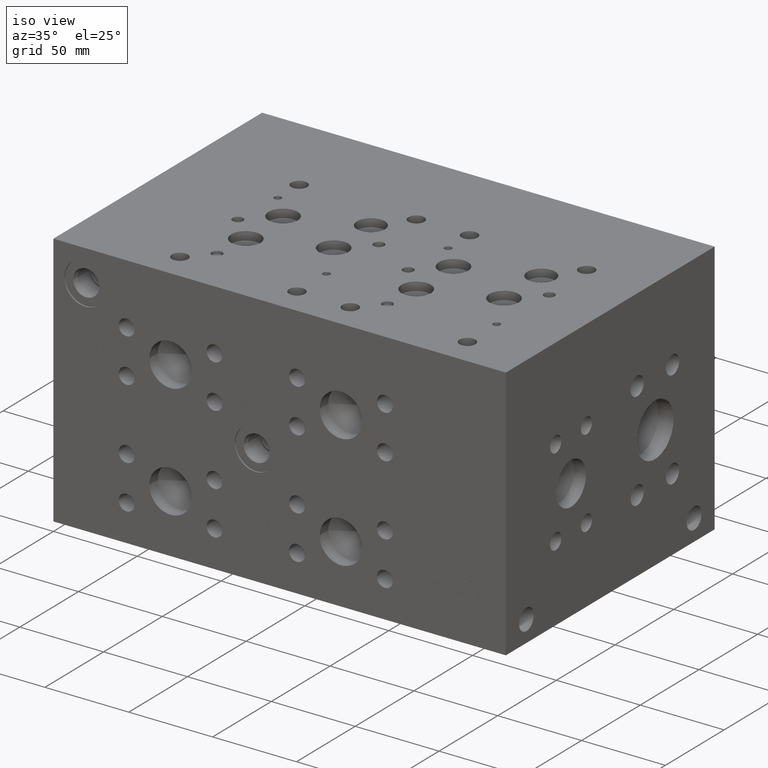
[diagram: clean part render]
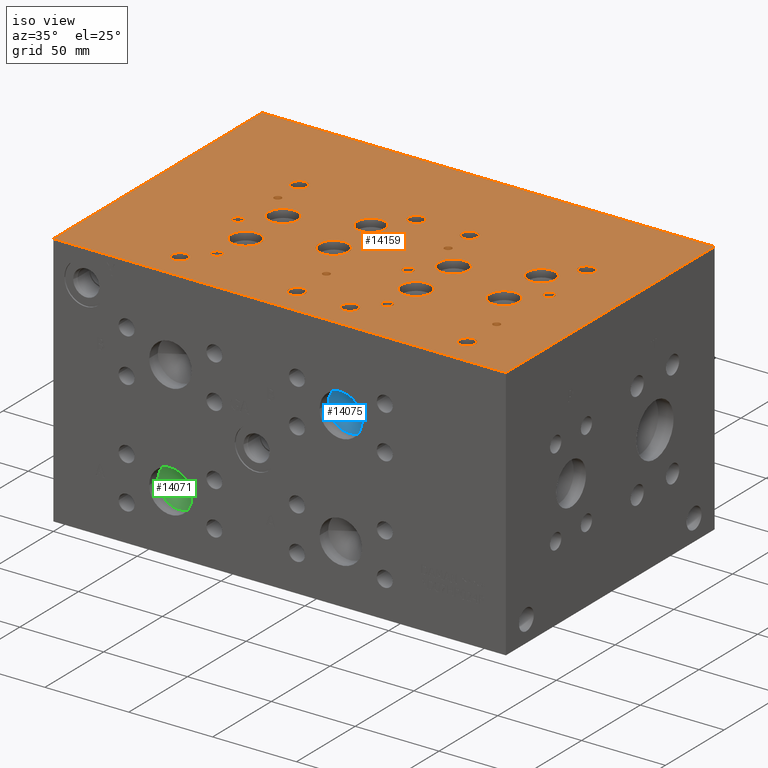
[diagram: same view with three faces highlighted in distinct colors, each labeled with its STEP entity id]
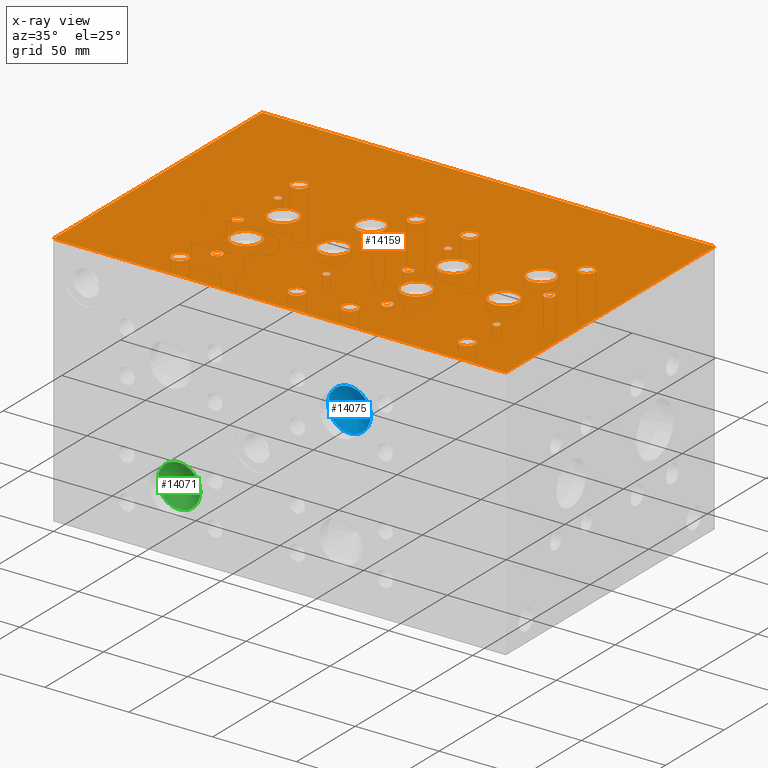
[diagram: x-ray of the same camera — body ghosted, the three highlighted faces saturated]
A machine part, iso view with three faces highlighted in distinct colors.
The next image is the same camera in x-ray (body ghosted, the three faces saturated) — at least one of them is partly hidden behind the body in this view.
Their STEP definitions:

[orange] entity #14159 — the highlighted planar face has unit normal (0, 0, 1).
#544=CIRCLE('',#15035,2.1844);
#545=CIRCLE('',#15036,2.1844);
#548=CIRCLE('',#15041,2.1844);
#549=CIRCLE('',#15042,2.1844);
#552=CIRCLE('',#15047,3.175);
#553=CIRCLE('',#15048,3.175);
#556=CIRCLE('',#15053,3.175);
#557=CIRCLE('',#15054,3.175);
#560=CIRCLE('',#15059,8.3312);
#561=CIRCLE('',#15060,8.3312);
#564=CIRCLE('',#15065,8.3312);
#565=CIRCLE('',#15066,8.3312);
#568=CIRCLE('',#15071,8.7376);
#569=CIRCLE('',#15072,8.7376);
#572=CIRCLE('',#15077,8.7376);
#573=CIRCLE('',#15078,8.7376);
#576=CIRCLE('',#15083,8.7376);
#577=CIRCLE('',#15084,8.7376);
#580=CIRCLE('',#15089,8.7376);
#581=CIRCLE('',#15090,8.7376);
#584=CIRCLE('',#15095,8.7376);
#585=CIRCLE('',#15096,8.7376);
#588=CIRCLE('',#15101,8.7376);
#589=CIRCLE('',#15102,8.7376);
#592=CIRCLE('',#15107,2.1844);
#593=CIRCLE('',#15108,2.1844);
#596=CIRCLE('',#15113,2.1844);
#597=CIRCLE('',#15114,2.1844);
#603=CIRCLE('',#15123,3.175);
#604=CIRCLE('',#15124,3.175);
#610=CIRCLE('',#15134,3.175);
#611=CIRCLE('',#15135,3.175);
#617=CIRCLE('',#15145,3.175);
#618=CIRCLE('',#15146,3.175);
#624=CIRCLE('',#15156,3.175);
#625=CIRCLE('',#15157,3.175);
#631=CIRCLE('',#15167,4.7625);
#632=CIRCLE('',#15168,4.7625);
#638=CIRCLE('',#15178,4.7625);
#639=CIRCLE('',#15179,4.7625);
#645=CIRCLE('',#15189,4.7625);
#646=CIRCLE('',#15190,4.7625);
#652=CIRCLE('',#15200,4.7625);
#653=CIRCLE('',#15201,4.7625);
#659=CIRCLE('',#15211,4.7625);
#660=CIRCLE('',#15212,4.7625);
#666=CIRCLE('',#15222,4.7625);
#667=CIRCLE('',#15223,4.7625);
#673=CIRCLE('',#15233,4.7625);
#674=CIRCLE('',#15234,4.7625);
#680=CIRCLE('',#15244,4.7625);
#681=CIRCLE('',#15245,4.7625);
#827=FACE_BOUND('',#2873,.T.);
#828=FACE_BOUND('',#2874,.T.);
#829=FACE_BOUND('',#2875,.T.);
#830=FACE_BOUND('',#2876,.T.);
#831=FACE_BOUND('',#2877,.T.);
#832=FACE_BOUND('',#2878,.T.);
#833=FACE_BOUND('',#2879,.T.);
#834=FACE_BOUND('',#2880,.T.);
#835=FACE_BOUND('',#2881,.T.);
#836=FACE_BOUND('',#2882,.T.);
#837=FACE_BOUND('',#2883,.T.);
#838=FACE_BOUND('',#2884,.T.);
#839=FACE_BOUND('',#2885,.T.);
#840=FACE_BOUND('',#2886,.T.);
#841=FACE_BOUND('',#2887,.T.);
#842=FACE_BOUND('',#2888,.T.);
#843=FACE_BOUND('',#2889,.T.);
#844=FACE_BOUND('',#2890,.T.);
#845=FACE_BOUND('',#2891,.T.);
#846=FACE_BOUND('',#2892,.T.);
#847=FACE_BOUND('',#2893,.T.);
#848=FACE_BOUND('',#2894,.T.);
#849=FACE_BOUND('',#2895,.T.);
#850=FACE_BOUND('',#2896,.T.);
#851=FACE_BOUND('',#2897,.T.);
#852=FACE_BOUND('',#2898,.T.);
#1261=PLANE('',#15251);
#1994=FACE_OUTER_BOUND('',#2872,.T.);
#2872=EDGE_LOOP('',(#12798,#12799,#12800,#12801));
#2873=EDGE_LOOP('',(#12802,#12803));
#2874=EDGE_LOOP('',(#12804,#12805));
#2875=EDGE_LOOP('',(#12806,#12807));
#2876=EDGE_LOOP('',(#12808,#12809));
#2877=EDGE_LOOP('',(#12810,#12811));
#2878=EDGE_LOOP('',(#12812,#12813));
#2879=EDGE_LOOP('',(#12814,#12815));
#2880=EDGE_LOOP('',(#12816,#12817));
#2881=EDGE_LOOP('',(#12818,#12819));
#2882=EDGE_LOOP('',(#12820,#12821));
#2883=EDGE_LOOP('',(#12822,#12823));
#2884=EDGE_LOOP('',(#12824,#12825));
#2885=EDGE_LOOP('',(#12826,#12827));
#2886=EDGE_LOOP('',(#12828,#12829));
#2887=EDGE_LOOP('',(#12830,#12831));
#2888=EDGE_LOOP('',(#12832,#12833));
#2889=EDGE_LOOP('',(#12834,#12835));
#2890=EDGE_LOOP('',(#12836,#12837));
#2891=EDGE_LOOP('',(#12838,#12839));
#2892=EDGE_LOOP('',(#12840,#12841));
#2893=EDGE_LOOP('',(#12842,#12843));
#2894=EDGE_LOOP('',(#12844,#12845));
#2895=EDGE_LOOP('',(#12846,#12847));
#2896=EDGE_LOOP('',(#12848,#12849));
#2897=EDGE_LOOP('',(#12850,#12851));
#2898=EDGE_LOOP('',(#12852,#12853));
#2934=LINE('',#18870,#4184);
#2994=LINE('',#19177,#4244);
#3315=LINE('',#20743,#4565);
#4149=LINE('',#24243,#5399);
#4184=VECTOR('',#15309,10.);
#4244=VECTOR('',#15455,10.);
#4565=VECTOR('',#16026,10.);
#5399=VECTOR('',#18652,10.);
#5668=VERTEX_POINT('',#18867);
#5669=VERTEX_POINT('',#18869);
#5744=VERTEX_POINT('',#19174);
#5745=VERTEX_POINT('',#19176);
#6857=VERTEX_POINT('',#23802);
#6858=VERTEX_POINT('',#23803);
#6862=VERTEX_POINT('',#23815);
#6863=VERTEX_POINT('',#23816);
#6867=VERTEX_POINT('',#23828);
#6868=VERTEX_POINT('',#23829);
#6872=VERTEX_POINT('',#23841);
#6873=VERTEX_POINT('',#23842);
#6877=VERTEX_POINT('',#23854);
#6878=VERTEX_POINT('',#23855);
#6882=VERTEX_POINT('',#23867);
#6883=VERTEX_POINT('',#23868);
#6887=VERTEX_POINT('',#23880);
#6888=VERTEX_POINT('',#23881);
#6892=VERTEX_POINT('',#23893);
#6893=VERTEX_POINT('',#23894);
#6897=VERTEX_POINT('',#23906);
#6898=VERTEX_POINT('',#23907);
#6902=VERTEX_POINT('',#23919);
#6903=VERTEX_POINT('',#23920);
#6907=VERTEX_POINT('',#23932);
#6908=VERTEX_POINT('',#23933);
#6912=VERTEX_POINT('',#23945);
#6913=VERTEX_POINT('',#23946);
#6917=VERTEX_POINT('',#23958);
#6918=VERTEX_POINT('',#23959);
#6922=VERTEX_POINT('',#23971);
#6923=VERTEX_POINT('',#23972);
#6930=VERTEX_POINT('',#23991);
#6931=VERTEX_POINT('',#23992);
#6938=VERTEX_POINT('',#24013);
#6939=VERTEX_POINT('',#24014);
#6946=VERTEX_POINT('',#24035);
#6947=VERTEX_POINT('',#24036);
#6954=VERTEX_POINT('',#24057);
#6955=VERTEX_POINT('',#24058);
#6962=VERTEX_POINT('',#24079);
#6963=VERTEX_POINT('',#24080);
#6970=VERTEX_POINT('',#24101);
#6971=VERTEX_POINT('',#24102);
#6978=VERTEX_POINT('',#24123);
#6979=VERTEX_POINT('',#24124);
#6986=VERTEX_POINT('',#24145);
#6987=VERTEX_POINT('',#24146);
#6994=VERTEX_POINT('',#24167);
#6995=VERTEX_POINT('',#24168);
#7002=VERTEX_POINT('',#24189);
#7003=VERTEX_POINT('',#24190);
#7010=VERTEX_POINT('',#24211);
#7011=VERTEX_POINT('',#24212);
#7018=VERTEX_POINT('',#24233);
#7019=VERTEX_POINT('',#24234);
#7070=EDGE_CURVE('',#5669,#5668,#2934,.T.);
#7170=EDGE_CURVE('',#5745,#5744,#2994,.T.);
#7617=EDGE_CURVE('',#5744,#5669,#3315,.T.);
#8763=EDGE_CURVE('',#6857,#6858,#544,.T.);
#8764=EDGE_CURVE('',#6858,#6857,#545,.T.);
#8769=EDGE_CURVE('',#6862,#6863,#548,.T.);
#8770=EDGE_CURVE('',#6863,#6862,#549,.T.);
#8775=EDGE_CURVE('',#6867,#6868,#552,.T.);
#8776=EDGE_CURVE('',#6868,#6867,#553,.T.);
#8781=EDGE_CURVE('',#6872,#6873,#556,.T.);
#8782=EDGE_CURVE('',#6873,#6872,#557,.T.);
#8787=EDGE_CURVE('',#6877,#6878,#560,.T.);
#8788=EDGE_CURVE('',#6878,#6877,#561,.T.);
#8793=EDGE_CURVE('',#6882,#6883,#564,.T.);
#8794=EDGE_CURVE('',#6883,#6882,#565,.T.);
#8799=EDGE_CURVE('',#6887,#6888,#568,.T.);
#8800=EDGE_CURVE('',#6888,#6887,#569,.T.);
#8805=EDGE_CURVE('',#6892,#6893,#572,.T.);
#8806=EDGE_CURVE('',#6893,#6892,#573,.T.);
#8811=EDGE_CURVE('',#6897,#6898,#576,.T.);
#8812=EDGE_CURVE('',#6898,#6897,#577,.T.);
#8817=EDGE_CURVE('',#6902,#6903,#580,.T.);
#8818=EDGE_CURVE('',#6903,#6902,#581,.T.);
#8823=EDGE_CURVE('',#6907,#6908,#584,.T.);
#8824=EDGE_CURVE('',#6908,#6907,#585,.T.);
#8829=EDGE_CURVE('',#6912,#6913,#588,.T.);
#8830=EDGE_CURVE('',#6913,#6912,#589,.T.);
#8835=EDGE_CURVE('',#6917,#6918,#592,.T.);
#8836=EDGE_CURVE('',#6918,#6917,#593,.T.);
#8841=EDGE_CURVE('',#6922,#6923,#596,.T.);
#8842=EDGE_CURVE('',#6923,#6922,#597,.T.);
#8850=EDGE_CURVE('',#6930,#6931,#603,.T.);
#8851=EDGE_CURVE('',#6931,#6930,#604,.T.);
#8860=EDGE_CURVE('',#6938,#6939,#610,.T.);
#8861=EDGE_CURVE('',#6939,#6938,#611,.T.);
#8870=EDGE_CURVE('',#6946,#6947,#617,.T.);
#8871=EDGE_CURVE('',#6947,#6946,#618,.T.);
#8880=EDGE_CURVE('',#6954,#6955,#624,.T.);
#8881=EDGE_CURVE('',#6955,#6954,#625,.T.);
#8890=EDGE_CURVE('',#6962,#6963,#631,.T.);
#8891=EDGE_CURVE('',#6963,#6962,#632,.T.);
#8900=EDGE_CURVE('',#6970,#6971,#638,.T.);
#8901=EDGE_CURVE('',#6971,#6970,#639,.T.);
#8910=EDGE_CURVE('',#6978,#6979,#645,.T.);
#8911=EDGE_CURVE('',#6979,#6978,#646,.T.);
#8920=EDGE_CURVE('',#6986,#6987,#652,.T.);
#8921=EDGE_CURVE('',#6987,#6986,#653,.T.);
#8930=EDGE_CURVE('',#6994,#6995,#659,.T.);
#8931=EDGE_CURVE('',#6995,#6994,#660,.T.);
#8940=EDGE_CURVE('',#7002,#7003,#666,.T.);
#8941=EDGE_CURVE('',#7003,#7002,#667,.T.);
#8950=EDGE_CURVE('',#7010,#7011,#673,.T.);
#8951=EDGE_CURVE('',#7011,#7010,#674,.T.);
#8960=EDGE_CURVE('',#7018,#7019,#680,.T.);
#8961=EDGE_CURVE('',#7019,#7018,#681,.T.);
#8965=EDGE_CURVE('',#5668,#5745,#4149,.T.);
#12798=ORIENTED_EDGE('',*,*,#7617,.T.);
#12799=ORIENTED_EDGE('',*,*,#7070,.T.);
#12800=ORIENTED_EDGE('',*,*,#8965,.T.);
#12801=ORIENTED_EDGE('',*,*,#7170,.T.);
#12802=ORIENTED_EDGE('',*,*,#8763,.T.);
#12803=ORIENTED_EDGE('',*,*,#8764,.T.);
#12804=ORIENTED_EDGE('',*,*,#8769,.T.);
#12805=ORIENTED_EDGE('',*,*,#8770,.T.);
#12806=ORIENTED_EDGE('',*,*,#8775,.T.);
#12807=ORIENTED_EDGE('',*,*,#8776,.T.);
#12808=ORIENTED_EDGE('',*,*,#8781,.T.);
#12809=ORIENTED_EDGE('',*,*,#8782,.T.);
#12810=ORIENTED_EDGE('',*,*,#8787,.T.);
#12811=ORIENTED_EDGE('',*,*,#8788,.T.);
#12812=ORIENTED_EDGE('',*,*,#8793,.T.);
#12813=ORIENTED_EDGE('',*,*,#8794,.T.);
#12814=ORIENTED_EDGE('',*,*,#8799,.T.);
#12815=ORIENTED_EDGE('',*,*,#8800,.T.);
#12816=ORIENTED_EDGE('',*,*,#8805,.T.);
#12817=ORIENTED_EDGE('',*,*,#8806,.T.);
#12818=ORIENTED_EDGE('',*,*,#8811,.T.);
#12819=ORIENTED_EDGE('',*,*,#8812,.T.);
#12820=ORIENTED_EDGE('',*,*,#8817,.T.);
#12821=ORIENTED_EDGE('',*,*,#8818,.T.);
#12822=ORIENTED_EDGE('',*,*,#8823,.T.);
#12823=ORIENTED_EDGE('',*,*,#8824,.T.);
#12824=ORIENTED_EDGE('',*,*,#8829,.T.);
#12825=ORIENTED_EDGE('',*,*,#8830,.T.);
#12826=ORIENTED_EDGE('',*,*,#8835,.T.);
#12827=ORIENTED_EDGE('',*,*,#8836,.T.);
#12828=ORIENTED_EDGE('',*,*,#8841,.T.);
#12829=ORIENTED_EDGE('',*,*,#8842,.T.);
#12830=ORIENTED_EDGE('',*,*,#8850,.T.);
#12831=ORIENTED_EDGE('',*,*,#8851,.T.);
#12832=ORIENTED_EDGE('',*,*,#8860,.T.);
#12833=ORIENTED_EDGE('',*,*,#8861,.T.);
#12834=ORIENTED_EDGE('',*,*,#8870,.T.);
#12835=ORIENTED_EDGE('',*,*,#8871,.T.);
#12836=ORIENTED_EDGE('',*,*,#8880,.T.);
#12837=ORIENTED_EDGE('',*,*,#8881,.T.);
#12838=ORIENTED_EDGE('',*,*,#8890,.T.);
#12839=ORIENTED_EDGE('',*,*,#8891,.T.);
#12840=ORIENTED_EDGE('',*,*,#8900,.T.);
#12841=ORIENTED_EDGE('',*,*,#8901,.T.);
#12842=ORIENTED_EDGE('',*,*,#8910,.T.);
#12843=ORIENTED_EDGE('',*,*,#8911,.T.);
#12844=ORIENTED_EDGE('',*,*,#8920,.T.);
#12845=ORIENTED_EDGE('',*,*,#8921,.T.);
#12846=ORIENTED_EDGE('',*,*,#8930,.T.);
#12847=ORIENTED_EDGE('',*,*,#8931,.T.);
#12848=ORIENTED_EDGE('',*,*,#8940,.T.);
#12849=ORIENTED_EDGE('',*,*,#8941,.T.);
#12850=ORIENTED_EDGE('',*,*,#8950,.T.);
#12851=ORIENTED_EDGE('',*,*,#8951,.T.);
#12852=ORIENTED_EDGE('',*,*,#8960,.T.);
#12853=ORIENTED_EDGE('',*,*,#8961,.T.);
#14159=ADVANCED_FACE('',(#1994,#827,#828,#829,#830,#831,#832,#833,#834,
#835,#836,#837,#838,#839,#840,#841,#842,#843,#844,#845,#846,#847,#848,#849,
#850,#851,#852),#1261,.T.);
#15035=AXIS2_PLACEMENT_3D('',#23804,#18160,#18161);
#15036=AXIS2_PLACEMENT_3D('',#23805,#18162,#18163);
#15041=AXIS2_PLACEMENT_3D('',#23817,#18174,#18175);
#15042=AXIS2_PLACEMENT_3D('',#23818,#18176,#18177);
#15047=AXIS2_PLACEMENT_3D('',#23830,#18188,#18189);
#15048=AXIS2_PLACEMENT_3D('',#23831,#18190,#18191);
#15053=AXIS2_PLACEMENT_3D('',#23843,#18202,#18203);
#15054=AXIS2_PLACEMENT_3D('',#23844,#18204,#18205);
#15059=AXIS2_PLACEMENT_3D('',#23856,#18216,#18217);
#15060=AXIS2_PLACEMENT_3D('',#23857,#18218,#18219);
#15065=AXIS2_PLACEMENT_3D('',#23869,#18230,#18231);
#15066=AXIS2_PLACEMENT_3D('',#23870,#18232,#18233);
#15071=AXIS2_PLACEMENT_3D('',#23882,#18244,#18245);
#15072=AXIS2_PLACEMENT_3D('',#23883,#18246,#18247);
#15077=AXIS2_PLACEMENT_3D('',#23895,#18258,#18259);
#15078=AXIS2_PLACEMENT_3D('',#23896,#18260,#18261);
#15083=AXIS2_PLACEMENT_3D('',#23908,#18272,#18273);
#15084=AXIS2_PLACEMENT_3D('',#23909,#18274,#18275);
#15089=AXIS2_PLACEMENT_3D('',#23921,#18286,#18287);
#15090=AXIS2_PLACEMENT_3D('',#23922,#18288,#18289);
#15095=AXIS2_PLACEMENT_3D('',#23934,#18300,#18301);
#15096=AXIS2_PLACEMENT_3D('',#23935,#18302,#18303);
#15101=AXIS2_PLACEMENT_3D('',#23947,#18314,#18315);
#15102=AXIS2_PLACEMENT_3D('',#23948,#18316,#18317);
#15107=AXIS2_PLACEMENT_3D('',#23960,#18328,#18329);
#15108=AXIS2_PLACEMENT_3D('',#23961,#18330,#18331);
#15113=AXIS2_PLACEMENT_3D('',#23973,#18342,#18343);
#15114=AXIS2_PLACEMENT_3D('',#23974,#18344,#18345);
#15123=AXIS2_PLACEMENT_3D('',#23993,#18364,#18365);
#15124=AXIS2_PLACEMENT_3D('',#23994,#18366,#18367);
#15134=AXIS2_PLACEMENT_3D('',#24015,#18389,#18390);
#15135=AXIS2_PLACEMENT_3D('',#24016,#18391,#18392);
#15145=AXIS2_PLACEMENT_3D('',#24037,#18414,#18415);
#15146=AXIS2_PLACEMENT_3D('',#24038,#18416,#18417);
#15156=AXIS2_PLACEMENT_3D('',#24059,#18439,#18440);
#15157=AXIS2_PLACEMENT_3D('',#24060,#18441,#18442);
#15167=AXIS2_PLACEMENT_3D('',#24081,#18464,#18465);
#15168=AXIS2_PLACEMENT_3D('',#24082,#18466,#18467);
#15178=AXIS2_PLACEMENT_3D('',#24103,#18489,#18490);
#15179=AXIS2_PLACEMENT_3D('',#24104,#18491,#18492);
#15189=AXIS2_PLACEMENT_3D('',#24125,#18514,#18515);
#15190=AXIS2_PLACEMENT_3D('',#24126,#18516,#18517);
#15200=AXIS2_PLACEMENT_3D('',#24147,#18539,#18540);
#15201=AXIS2_PLACEMENT_3D('',#24148,#18541,#18542);
#15211=AXIS2_PLACEMENT_3D('',#24169,#18564,#18565);
#15212=AXIS2_PLACEMENT_3D('',#24170,#18566,#18567);
#15222=AXIS2_PLACEMENT_3D('',#24191,#18589,#18590);
#15223=AXIS2_PLACEMENT_3D('',#24192,#18591,#18592);
#15233=AXIS2_PLACEMENT_3D('',#24213,#18614,#18615);
#15234=AXIS2_PLACEMENT_3D('',#24214,#18616,#18617);
#15244=AXIS2_PLACEMENT_3D('',#24235,#18639,#18640);
#15245=AXIS2_PLACEMENT_3D('',#24236,#18641,#18642);
#15251=AXIS2_PLACEMENT_3D('',#24246,#18657,#18658);
#15309=DIRECTION('',(0.,1.,0.));
#15455=DIRECTION('',(0.,-1.,0.));
#16026=DIRECTION('',(1.,0.,0.));
#18160=DIRECTION('center_axis',(0.,0.,-1.));
#18161=DIRECTION('ref_axis',(1.,0.,0.));
#18162=DIRECTION('center_axis',(0.,0.,-1.));
#18163=DIRECTION('ref_axis',(1.,0.,0.));
#18174=DIRECTION('center_axis',(0.,0.,-1.));
#18175=DIRECTION('ref_axis',(1.,0.,0.));
#18176=DIRECTION('center_axis',(0.,0.,-1.));
#18177=DIRECTION('ref_axis',(1.,0.,0.));
#18188=DIRECTION('center_axis',(0.,0.,-1.));
#18189=DIRECTION('ref_axis',(1.,0.,0.));
#18190=DIRECTION('center_axis',(0.,0.,-1.));
#18191=DIRECTION('ref_axis',(1.,0.,0.));
#18202=DIRECTION('center_axis',(0.,0.,-1.));
#18203=DIRECTION('ref_axis',(1.,0.,0.));
#18204=DIRECTION('center_axis',(0.,0.,-1.));
#18205=DIRECTION('ref_axis',(1.,0.,0.));
#18216=DIRECTION('center_axis',(0.,0.,-1.));
#18217=DIRECTION('ref_axis',(1.,0.,0.));
#18218=DIRECTION('center_axis',(0.,0.,-1.));
#18219=DIRECTION('ref_axis',(1.,0.,0.));
#18230=DIRECTION('center_axis',(0.,0.,-1.));
#18231=DIRECTION('ref_axis',(1.,0.,0.));
#18232=DIRECTION('center_axis',(0.,0.,-1.));
#18233=DIRECTION('ref_axis',(1.,0.,0.));
#18244=DIRECTION('center_axis',(0.,0.,-1.));
#18245=DIRECTION('ref_axis',(1.,0.,0.));
#18246=DIRECTION('center_axis',(0.,0.,-1.));
#18247=DIRECTION('ref_axis',(1.,0.,0.));
#18258=DIRECTION('center_axis',(0.,0.,-1.));
#18259=DIRECTION('ref_axis',(1.,0.,0.));
#18260=DIRECTION('center_axis',(0.,0.,-1.));
#18261=DIRECTION('ref_axis',(1.,0.,0.));
#18272=DIRECTION('center_axis',(0.,0.,-1.));
#18273=DIRECTION('ref_axis',(1.,0.,0.));
#18274=DIRECTION('center_axis',(0.,0.,-1.));
#18275=DIRECTION('ref_axis',(1.,0.,0.));
#18286=DIRECTION('center_axis',(0.,0.,-1.));
#18287=DIRECTION('ref_axis',(1.,0.,0.));
#18288=DIRECTION('center_axis',(0.,0.,-1.));
#18289=DIRECTION('ref_axis',(1.,0.,0.));
#18300=DIRECTION('center_axis',(0.,0.,-1.));
#18301=DIRECTION('ref_axis',(1.,0.,0.));
#18302=DIRECTION('center_axis',(0.,0.,-1.));
#18303=DIRECTION('ref_axis',(1.,0.,0.));
#18314=DIRECTION('center_axis',(0.,0.,-1.));
#18315=DIRECTION('ref_axis',(1.,0.,0.));
#18316=DIRECTION('center_axis',(0.,0.,-1.));
#18317=DIRECTION('ref_axis',(1.,0.,0.));
#18328=DIRECTION('center_axis',(0.,0.,-1.));
#18329=DIRECTION('ref_axis',(1.,0.,0.));
#18330=DIRECTION('center_axis',(0.,0.,-1.));
#18331=DIRECTION('ref_axis',(1.,0.,0.));
#18342=DIRECTION('center_axis',(0.,0.,-1.));
#18343=DIRECTION('ref_axis',(1.,0.,0.));
#18344=DIRECTION('center_axis',(0.,0.,-1.));
#18345=DIRECTION('ref_axis',(1.,0.,0.));
#18364=DIRECTION('center_axis',(0.,0.,-1.));
#18365=DIRECTION('ref_axis',(1.,0.,0.));
#18366=DIRECTION('center_axis',(0.,0.,-1.));
#18367=DIRECTION('ref_axis',(1.,0.,0.));
#18389=DIRECTION('center_axis',(0.,0.,-1.));
#18390=DIRECTION('ref_axis',(1.,0.,0.));
#18391=DIRECTION('center_axis',(0.,0.,-1.));
#18392=DIRECTION('ref_axis',(1.,0.,0.));
#18414=DIRECTION('center_axis',(0.,0.,-1.));
#18415=DIRECTION('ref_axis',(1.,0.,0.));
#18416=DIRECTION('center_axis',(0.,0.,-1.));
#18417=DIRECTION('ref_axis',(1.,0.,0.));
#18439=DIRECTION('center_axis',(0.,0.,-1.));
#18440=DIRECTION('ref_axis',(1.,0.,0.));
#18441=DIRECTION('center_axis',(0.,0.,-1.));
#18442=DIRECTION('ref_axis',(1.,0.,0.));
#18464=DIRECTION('center_axis',(0.,0.,-1.));
#18465=DIRECTION('ref_axis',(1.,0.,0.));
#18466=DIRECTION('center_axis',(0.,0.,-1.));
#18467=DIRECTION('ref_axis',(1.,0.,0.));
#18489=DIRECTION('center_axis',(0.,0.,-1.));
#18490=DIRECTION('ref_axis',(1.,0.,0.));
#18491=DIRECTION('center_axis',(0.,0.,-1.));
#18492=DIRECTION('ref_axis',(1.,0.,0.));
#18514=DIRECTION('center_axis',(0.,0.,-1.));
#18515=DIRECTION('ref_axis',(1.,0.,0.));
#18516=DIRECTION('center_axis',(0.,0.,-1.));
#18517=DIRECTION('ref_axis',(1.,0.,0.));
#18539=DIRECTION('center_axis',(0.,0.,-1.));
#18540=DIRECTION('ref_axis',(1.,0.,0.));
#18541=DIRECTION('center_axis',(0.,0.,-1.));
#18542=DIRECTION('ref_axis',(1.,0.,0.));
#18564=DIRECTION('center_axis',(0.,0.,-1.));
#18565=DIRECTION('ref_axis',(1.,0.,0.));
#18566=DIRECTION('center_axis',(0.,0.,-1.));
#18567=DIRECTION('ref_axis',(1.,0.,0.));
#18589=DIRECTION('center_axis',(0.,0.,-1.));
#18590=DIRECTION('ref_axis',(1.,0.,0.));
#18591=DIRECTION('center_axis',(0.,0.,-1.));
#18592=DIRECTION('ref_axis',(1.,0.,0.));
#18614=DIRECTION('center_axis',(0.,0.,-1.));
#18615=DIRECTION('ref_axis',(1.,0.,0.));
#18616=DIRECTION('center_axis',(0.,0.,-1.));
#18617=DIRECTION('ref_axis',(1.,0.,0.));
#18639=DIRECTION('center_axis',(0.,0.,-1.));
#18640=DIRECTION('ref_axis',(1.,0.,0.));
#18641=DIRECTION('center_axis',(0.,0.,-1.));
#18642=DIRECTION('ref_axis',(1.,0.,0.));
#18652=DIRECTION('',(-1.,0.,0.));
#18657=DIRECTION('center_axis',(0.,0.,1.));
#18658=DIRECTION('ref_axis',(1.,0.,0.));
#18867=CARTESIAN_POINT('',(269.875,177.8,152.4));
#18869=CARTESIAN_POINT('',(269.875,0.,152.4));
#18870=CARTESIAN_POINT('',(269.875,0.,152.4));
#19174=CARTESIAN_POINT('',(0.,0.,152.4));
#19176=CARTESIAN_POINT('',(0.,177.8,152.4));
#19177=CARTESIAN_POINT('',(0.,177.8,152.4));
#20743=CARTESIAN_POINT('',(0.,0.,152.4));
#23802=CARTESIAN_POINT('',(166.4716,101.6,152.4));
#23803=CARTESIAN_POINT('',(162.1028,101.6,152.4));
#23804=CARTESIAN_POINT('Origin',(164.2872,101.6,152.4));
#23805=CARTESIAN_POINT('Origin',(164.2872,101.6,152.4));
#23815=CARTESIAN_POINT('',(236.3216,43.2562,152.4));
#23816=CARTESIAN_POINT('',(231.9528,43.2562,152.4));
#23817=CARTESIAN_POINT('Origin',(234.1372,43.2562,152.4));
#23818=CARTESIAN_POINT('Origin',(234.1372,43.2562,152.4));
#23828=CARTESIAN_POINT('',(78.5622,31.75,152.4));
#23829=CARTESIAN_POINT('',(72.2122,31.75,152.4));
#23830=CARTESIAN_POINT('Origin',(75.3872,31.75,152.4));
#23831=CARTESIAN_POINT('Origin',(75.3872,31.75,152.4));
#23841=CARTESIAN_POINT('',(180.1622,31.75,152.4));
#23842=CARTESIAN_POINT('',(173.8122,31.75,152.4));
#23843=CARTESIAN_POINT('Origin',(176.9872,31.75,152.4));
#23844=CARTESIAN_POINT('Origin',(176.9872,31.75,152.4));
#23854=CARTESIAN_POINT('',(126.5936,101.6,152.4));
#23855=CARTESIAN_POINT('',(109.9312,101.6,152.4));
#23856=CARTESIAN_POINT('Origin',(118.2624,101.6,152.4));
#23857=CARTESIAN_POINT('Origin',(118.2624,101.6,152.4));
#23867=CARTESIAN_POINT('',(228.1936,101.6,152.4));
#23868=CARTESIAN_POINT('',(211.5312,101.6,152.4));
#23869=CARTESIAN_POINT('Origin',(219.8624,101.6,152.4));
#23870=CARTESIAN_POINT('Origin',(219.8624,101.6,152.4));
#23880=CARTESIAN_POINT('',(187.325,85.725,152.4));
#23881=CARTESIAN_POINT('',(169.8498,85.725,152.4));
#23882=CARTESIAN_POINT('Origin',(178.5874,85.725,152.4));
#23883=CARTESIAN_POINT('Origin',(178.5874,85.725,152.4));
#23893=CARTESIAN_POINT('',(85.725,53.975,152.4));
#23894=CARTESIAN_POINT('',(68.2498,53.975,152.4));
#23895=CARTESIAN_POINT('Origin',(76.9874,53.975,152.4));
#23896=CARTESIAN_POINT('Origin',(76.9874,53.975,152.4));
#23906=CARTESIAN_POINT('',(127.,69.85,152.4));
#23907=CARTESIAN_POINT('',(109.5248,69.85,152.4));
#23908=CARTESIAN_POINT('Origin',(118.2624,69.85,152.4));
#23909=CARTESIAN_POINT('Origin',(118.2624,69.85,152.4));
#23919=CARTESIAN_POINT('',(85.725,85.725,152.4));
#23920=CARTESIAN_POINT('',(68.2498,85.725,152.4));
#23921=CARTESIAN_POINT('Origin',(76.9874,85.725,152.4));
#23922=CARTESIAN_POINT('Origin',(76.9874,85.725,152.4));
#23932=CARTESIAN_POINT('',(228.6,69.85,152.4));
#23933=CARTESIAN_POINT('',(211.1248,69.85,152.4));
#23934=CARTESIAN_POINT('Origin',(219.8624,69.85,152.4));
#23935=CARTESIAN_POINT('Origin',(219.8624,69.85,152.4));
#23945=CARTESIAN_POINT('',(187.325,53.975,152.4));
#23946=CARTESIAN_POINT('',(169.8498,53.975,152.4));
#23947=CARTESIAN_POINT('Origin',(178.5874,53.975,152.4));
#23948=CARTESIAN_POINT('Origin',(178.5874,53.975,152.4));
#23958=CARTESIAN_POINT('',(64.8716,101.6,152.4));
#23959=CARTESIAN_POINT('',(60.5028,101.6,152.4));
#23960=CARTESIAN_POINT('Origin',(62.6872,101.6,152.4));
#23961=CARTESIAN_POINT('Origin',(62.6872,101.6,152.4));
#23971=CARTESIAN_POINT('',(134.7216,43.2562,152.4));
#23972=CARTESIAN_POINT('',(130.3528,43.2562,152.4));
#23973=CARTESIAN_POINT('Origin',(132.5372,43.2562,152.4));
#23974=CARTESIAN_POINT('Origin',(132.5372,43.2562,152.4));
#23991=CARTESIAN_POINT('',(165.8874,69.85,152.4));
#23992=CARTESIAN_POINT('',(159.5374,69.85,152.4));
#23993=CARTESIAN_POINT('Origin',(162.7124,69.85,152.4));
#23994=CARTESIAN_POINT('Origin',(162.7124,69.85,152.4));
#24013=CARTESIAN_POINT('',(64.2874,69.85,152.4));
#24014=CARTESIAN_POINT('',(57.9374,69.85,152.4));
#24015=CARTESIAN_POINT('Origin',(61.1124,69.85,152.4));
#24016=CARTESIAN_POINT('Origin',(61.1124,69.85,152.4));
#24035=CARTESIAN_POINT('',(137.3124,85.725,152.4));
#24036=CARTESIAN_POINT('',(130.9624,85.725,152.4));
#24037=CARTESIAN_POINT('Origin',(134.1374,85.725,152.4));
#24038=CARTESIAN_POINT('Origin',(134.1374,85.725,152.4));
#24057=CARTESIAN_POINT('',(238.9124,85.725,152.4));
#24058=CARTESIAN_POINT('',(232.5624,85.725,152.4));
#24059=CARTESIAN_POINT('Origin',(235.7374,85.725,152.4));
#24060=CARTESIAN_POINT('Origin',(235.7374,85.725,152.4));
#24079=CARTESIAN_POINT('',(238.8997,18.2626,152.4));
#24080=CARTESIAN_POINT('',(229.3747,18.2626,152.4));
#24081=CARTESIAN_POINT('Origin',(234.1372,18.2626,152.4));
#24082=CARTESIAN_POINT('Origin',(234.1372,18.2626,152.4));
#24101=CARTESIAN_POINT('',(169.0497,119.8626,152.4));
#24102=CARTESIAN_POINT('',(159.5247,119.8626,152.4));
#24103=CARTESIAN_POINT('Origin',(164.2872,119.8626,152.4));
#24104=CARTESIAN_POINT('Origin',(164.2872,119.8626,152.4));
#24123=CARTESIAN_POINT('',(137.2997,18.2626,152.4));
#24124=CARTESIAN_POINT('',(127.7747,18.2626,152.4));
#24125=CARTESIAN_POINT('Origin',(132.5372,18.2626,152.4));
#24126=CARTESIAN_POINT('Origin',(132.5372,18.2626,152.4));
#24145=CARTESIAN_POINT('',(67.4497,119.8626,152.4));
#24146=CARTESIAN_POINT('',(57.9247,119.8626,152.4));
#24147=CARTESIAN_POINT('Origin',(62.6872,119.8626,152.4));
#24148=CARTESIAN_POINT('Origin',(62.6872,119.8626,152.4));
#24167=CARTESIAN_POINT('',(137.2997,119.8626,152.4));
#24168=CARTESIAN_POINT('',(127.7747,119.8626,152.4));
#24169=CARTESIAN_POINT('Origin',(132.5372,119.8626,152.4));
#24170=CARTESIAN_POINT('Origin',(132.5372,119.8626,152.4));
#24189=CARTESIAN_POINT('',(67.4497,18.2626,152.4));
#24190=CARTESIAN_POINT('',(57.9247,18.2626,152.4));
#24191=CARTESIAN_POINT('Origin',(62.6872,18.2626,152.4));
#24192=CARTESIAN_POINT('Origin',(62.6872,18.2626,152.4));
#24211=CARTESIAN_POINT('',(238.8997,119.8626,152.4));
#24212=CARTESIAN_POINT('',(229.3747,119.8626,152.4));
#24213=CARTESIAN_POINT('Origin',(234.1372,119.8626,152.4));
#24214=CARTESIAN_POINT('Origin',(234.1372,119.8626,152.4));
#24233=CARTESIAN_POINT('',(169.0497,18.2626,152.4));
#24234=CARTESIAN_POINT('',(159.5247,18.2626,152.4));
#24235=CARTESIAN_POINT('Origin',(164.2872,18.2626,152.4));
#24236=CARTESIAN_POINT('Origin',(164.2872,18.2626,152.4));
#24243=CARTESIAN_POINT('',(269.875,177.8,152.4));
#24246=CARTESIAN_POINT('Origin',(134.9375,88.9,152.4));

[blue] entity #14075 — the highlighted conical surface has half-angle 60 deg.
#192=CONICAL_SURFACE('',#15023,6.35,1.0471975511966);
#538=CIRCLE('',#15024,12.7);
#539=CIRCLE('',#15025,12.7);
#1910=FACE_OUTER_BOUND('',#2776,.T.);
#2776=EDGE_LOOP('',(#12397,#12398,#12399,#12400));
#4080=LINE('',#23781,#5330);
#5330=VECTOR('',#18135,6.35);
#6848=VERTEX_POINT('',#23777);
#6849=VERTEX_POINT('',#23778);
#6850=VERTEX_POINT('',#23780);
#8752=EDGE_CURVE('',#6848,#6849,#538,.T.);
#8753=EDGE_CURVE('',#6849,#6850,#4080,.T.);
#8754=EDGE_CURVE('',#6849,#6848,#539,.T.);
#12397=ORIENTED_EDGE('',*,*,#8752,.T.);
#12398=ORIENTED_EDGE('',*,*,#8753,.T.);
#12399=ORIENTED_EDGE('',*,*,#8753,.F.);
#12400=ORIENTED_EDGE('',*,*,#8754,.T.);
#14075=ADVANCED_FACE('',(#1910),#192,.F.);
#15023=AXIS2_PLACEMENT_3D('',#23776,#18131,#18132);
#15024=AXIS2_PLACEMENT_3D('',#23779,#18133,#18134);
#15025=AXIS2_PLACEMENT_3D('',#23782,#18136,#18137);
#18131=DIRECTION('center_axis',(0.,-1.,0.));
#18132=DIRECTION('ref_axis',(1.,0.,0.));
#18133=DIRECTION('center_axis',(0.,-1.,0.));
#18134=DIRECTION('ref_axis',(1.,0.,0.));
#18135=DIRECTION('',(0.866025403784439,0.5,1.06057523872491E-16));
#18136=DIRECTION('center_axis',(0.,-1.,0.));
#18137=DIRECTION('ref_axis',(1.,0.,0.));
#23776=CARTESIAN_POINT('Origin',(171.45,10.9985242093541,103.1748));
#23777=CARTESIAN_POINT('',(184.15,7.33235,103.1748));
#23778=CARTESIAN_POINT('',(158.75,7.33235,103.1748));
#23779=CARTESIAN_POINT('Origin',(171.45,7.33235,103.1748));
#23780=CARTESIAN_POINT('',(171.45,14.6646984187083,103.1748));
#23781=CARTESIAN_POINT('',(165.1,10.9985242093541,103.1748));
#23782=CARTESIAN_POINT('Origin',(171.45,7.33235,103.1748));

[green] entity #14071 — the highlighted conical surface has half-angle 60 deg.
#190=CONICAL_SURFACE('',#15015,6.35,1.0471975511966);
#534=CIRCLE('',#15016,12.7);
#535=CIRCLE('',#15017,12.7);
#1906=FACE_OUTER_BOUND('',#2772,.T.);
#2772=EDGE_LOOP('',(#12377,#12378,#12379,#12380));
#4076=LINE('',#23763,#5326);
#5326=VECTOR('',#18115,6.35);
#6842=VERTEX_POINT('',#23759);
#6843=VERTEX_POINT('',#23760);
#6844=VERTEX_POINT('',#23762);
#8744=EDGE_CURVE('',#6842,#6843,#534,.T.);
#8745=EDGE_CURVE('',#6843,#6844,#4076,.T.);
#8746=EDGE_CURVE('',#6843,#6842,#535,.T.);
#12377=ORIENTED_EDGE('',*,*,#8744,.T.);
#12378=ORIENTED_EDGE('',*,*,#8745,.T.);
#12379=ORIENTED_EDGE('',*,*,#8745,.F.);
#12380=ORIENTED_EDGE('',*,*,#8746,.T.);
#14071=ADVANCED_FACE('',(#1906),#190,.F.);
#15015=AXIS2_PLACEMENT_3D('',#23758,#18111,#18112);
#15016=AXIS2_PLACEMENT_3D('',#23761,#18113,#18114);
#15017=AXIS2_PLACEMENT_3D('',#23764,#18116,#18117);
#18111=DIRECTION('center_axis',(0.,-1.,0.));
#18112=DIRECTION('ref_axis',(1.,0.,0.));
#18113=DIRECTION('center_axis',(0.,-1.,0.));
#18114=DIRECTION('ref_axis',(1.,0.,0.));
#18115=DIRECTION('',(0.866025403784439,0.5,1.06057523872491E-16));
#18116=DIRECTION('center_axis',(0.,-1.,0.));
#18117=DIRECTION('ref_axis',(1.,0.,0.));
#23758=CARTESIAN_POINT('Origin',(69.85,10.9985242093541,34.925));
#23759=CARTESIAN_POINT('',(82.55,7.33235,34.925));
#23760=CARTESIAN_POINT('',(57.15,7.33235,34.925));
#23761=CARTESIAN_POINT('Origin',(69.85,7.33235,34.925));
#23762=CARTESIAN_POINT('',(69.85,14.6646984187083,34.925));
#23763=CARTESIAN_POINT('',(63.5,10.9985242093541,34.925));
#23764=CARTESIAN_POINT('Origin',(69.85,7.33235,34.925));